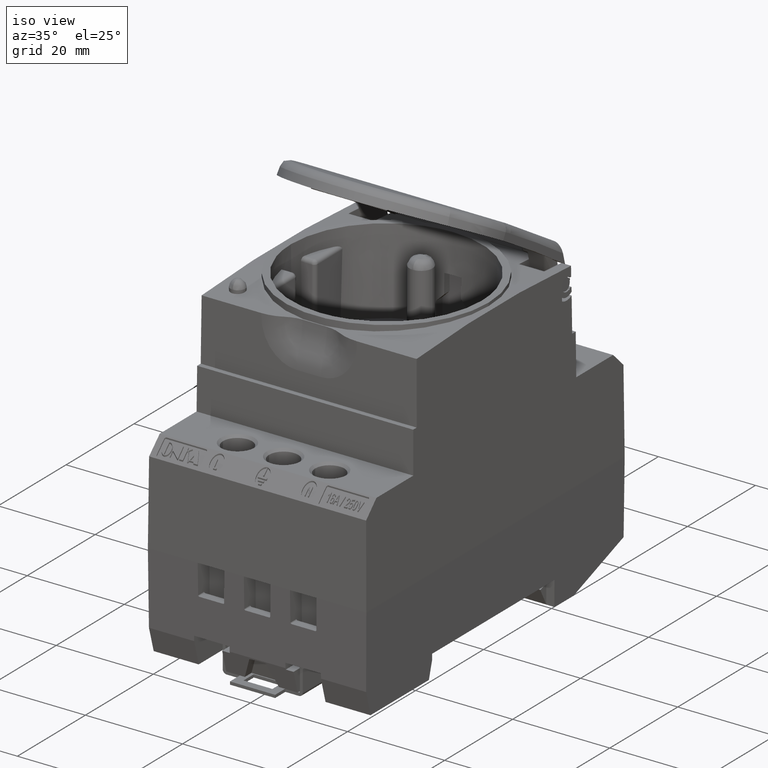
[diagram: clean part render]
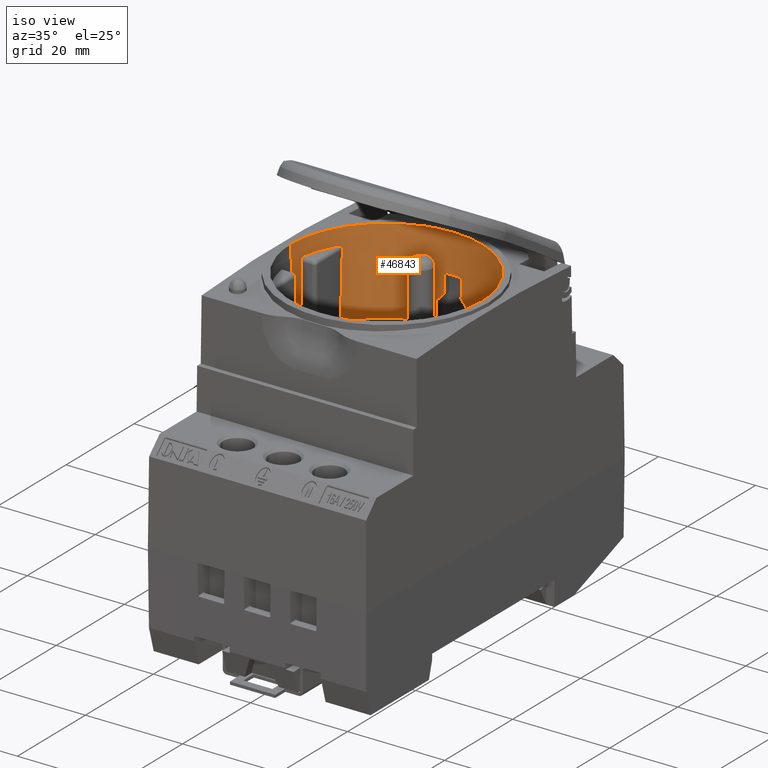
[diagram: same view with one face highlighted and labeled with its STEP entity id]
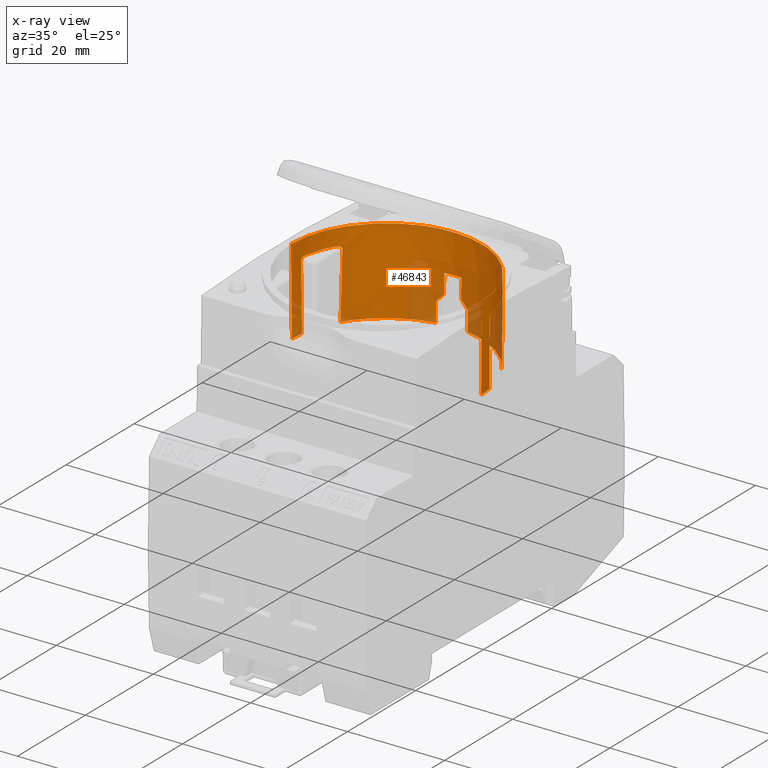
[diagram: x-ray of the same camera — body ghosted, the highlighted face saturated]
A machine part, iso view. The second image highlights one B-rep face of the part: STEP entity #46843.
The next image is the same camera in x-ray: the body ghosted, the highlighted face saturated — about 17% of this face is hidden behind the body in this view.
In plain terms, the highlighted conical surface has half-angle 0.5 deg.
Its self-contained STEP definition (entity closure, byte-faithful):
#18 = VERTEX_POINT ( 'NONE', #30670 ) ;
#33 = VERTEX_POINT ( 'NONE', #30674 ) ;
#44 = VERTEX_POINT ( 'NONE', #30706 ) ;
#1421 = VECTOR ( 'NONE', #39877, 1000.000000000000000 ) ;
#1708 = VECTOR ( 'NONE', #40313, 1000.000000000000000 ) ;
#1795 = VERTEX_POINT ( 'NONE', #30821 ) ;
#1807 = VERTEX_POINT ( 'NONE', #30770 ) ;
#3289 = B_SPLINE_CURVE_WITH_KNOTS ( 'NONE', 3,
 ( #49094, #49111, #49098, #49114, #49120, #49099, #49085, #49123, #49118, #49090, #49122, #49112, #49104, #49132, #49084, #49093, #49115, #49088, #49105, #49102, #49078, #49124, #49089, #49107, #49126 ),
 .UNSPECIFIED., .F., .F.,
 ( 4, 2, 2, 1, 1, 1, 2, 2, 2, 2, 1, 1, 2, 2, 4 ),
 ( 0.0000000000000000000, 0.2499999999999999400, 0.3750000000000011100, 0.4375000000000029400, 0.4687500000000038900, 0.4843750000000068300, 0.4921875000000041600, 0.5000000000000015500, 0.6249999999999597000, 0.6874999999999387200, 0.7187499999999302800, 0.7343749999999270600, 0.7421874999999268400, 0.7499999999999266100, 1.000000000000000000 ),
 .UNSPECIFIED. ) ;
#3302 = B_SPLINE_CURVE_WITH_KNOTS ( 'NONE', 3,
 ( #48960, #48932, #48974, #48982 ),
 .UNSPECIFIED., .F., .F.,
 ( 4, 4 ),
 ( 0.0000000000000000000, 1.000000000000000000 ),
 .UNSPECIFIED. ) ;
#3303 = B_SPLINE_CURVE_WITH_KNOTS ( 'NONE', 3,
 ( #48959, #48961, #49024, #49007, #49015, #48976 ),
 .UNSPECIFIED., .F., .F.,
 ( 4, 2, 4 ),
 ( 0.0000000000000000000, 0.5000000000000000000, 1.000000000000000000 ),
 .UNSPECIFIED. ) ;
#3304 = B_SPLINE_CURVE_WITH_KNOTS ( 'NONE', 3,
 ( #49009, #48988, #49011, #48990, #48981, #49017 ),
 .UNSPECIFIED., .F., .F.,
 ( 4, 2, 4 ),
 ( 0.0000000000000000000, 0.5000000000000000000, 1.000000000000000000 ),
 .UNSPECIFIED. ) ;
#3309 = B_SPLINE_CURVE_WITH_KNOTS ( 'NONE', 3,
 ( #49018, #49023, #48972, #49019 ),
 .UNSPECIFIED., .F., .F.,
 ( 4, 4 ),
 ( 0.0000000000000000000, 1.000000000000000000 ),
 .UNSPECIFIED. ) ;
#3310 = B_SPLINE_CURVE_WITH_KNOTS ( 'NONE', 3,
 ( #49056, #49034, #49027, #49036 ),
 .UNSPECIFIED., .F., .F.,
 ( 4, 4 ),
 ( 0.0000000000000000000, 1.000000000000000000 ),
 .UNSPECIFIED. ) ;
#3314 = B_SPLINE_CURVE_WITH_KNOTS ( 'NONE', 3,
 ( #48930, #48954, #48931, #48970 ),
 .UNSPECIFIED., .F., .F.,
 ( 4, 4 ),
 ( 0.0000000000000000000, 1.000000000000000000 ),
 .UNSPECIFIED. ) ;
#3315 = B_SPLINE_CURVE_WITH_KNOTS ( 'NONE', 3,
 ( #49130, #49116, #49079, #49131, #49109, #49081, #49083, #49143, #49149, #49135, #49178, #49170, #49167, #49134, #49176, #49141, #49155, #49175, #49144, #49150 ),
 .UNSPECIFIED., .F., .F.,
 ( 4, 1, 1, 1, 2, 2, 2, 1, 1, 1, 2, 2, 4 ),
 ( 0.0000000000000000000, 0.1250000000000003300, 0.1875000000000004400, 0.2187500000000006100, 0.2343750000000005800, 0.2500000000000005600, 0.5000000000000008900, 0.6250000000000012200, 0.6875000000000015500, 0.7187500000000018900, 0.7343750000000020000, 0.7500000000000020000, 1.000000000000000000 ),
 .UNSPECIFIED. ) ;
#3316 = B_SPLINE_CURVE_WITH_KNOTS ( 'NONE', 3,
 ( #49182, #49173, #49169, #49136 ),
 .UNSPECIFIED., .F., .F.,
 ( 4, 4 ),
 ( 0.0000000000000000000, 1.000000000000000000 ),
 .UNSPECIFIED. ) ;
#3321 = B_SPLINE_CURVE_WITH_KNOTS ( 'NONE', 3,
 ( #49207, #49226, #49290, #49272 ),
 .UNSPECIFIED., .F., .F.,
 ( 4, 4 ),
 ( 0.0000000000000000000, 0.9999998778534484600 ),
 .UNSPECIFIED. ) ;
#3328 = B_SPLINE_CURVE_WITH_KNOTS ( 'NONE', 3,
 ( #49181, #49162, #49158, #49139 ),
 .UNSPECIFIED., .F., .F.,
 ( 4, 4 ),
 ( 0.0000000000000000000, 1.000000000000000000 ),
 .UNSPECIFIED. ) ;
#3334 = B_SPLINE_CURVE_WITH_KNOTS ( 'NONE', 3,
 ( #20245, #20248, #20251, #20250 ),
 .UNSPECIFIED., .F., .F.,
 ( 4, 4 ),
 ( 0.0000000000000000000, 1.000000000000000000 ),
 .UNSPECIFIED. ) ;
#3339 = B_SPLINE_CURVE_WITH_KNOTS ( 'NONE', 3,
 ( #20312, #20327, #20347, #20315, #20319, #20340, #20331, #20333, #20317, #20348, #20345, #20308, #20329, #20353, #20330, #20334, #20335, #20350, #20316, #20336, #20344, #20302, #20303, #20341 ),
 .UNSPECIFIED., .F., .F.,
 ( 4, 2, 2, 1, 1, 2, 2, 2, 2, 1, 1, 2, 2, 4 ),
 ( 0.0000000000000000000, 0.1250000000000229800, 0.1875000000000344700, 0.2187500000000428800, 0.2343750000000473000, 0.2421875000000484900, 0.2500000000000497400, 0.3750000000000474600, 0.4375000000000442400, 0.4687500000000423000, 0.4843750000000420800, 0.4921875000000431900, 0.5000000000000443000, 1.000000000000000000 ),
 .UNSPECIFIED. ) ;
#3341 = B_SPLINE_CURVE_WITH_KNOTS ( 'NONE', 3,
 ( #48942, #48952, #48968, #48935 ),
 .UNSPECIFIED., .F., .F.,
 ( 4, 4 ),
 ( 0.0000000000000000000, 1.000000000000000000 ),
 .UNSPECIFIED. ) ;
#3343 = B_SPLINE_CURVE_WITH_KNOTS ( 'NONE', 3,
 ( #48947, #48963, #48966, #48971 ),
 .UNSPECIFIED., .F., .F.,
 ( 4, 4 ),
 ( 0.0000000000000000000, 0.9999998748836067500 ),
 .UNSPECIFIED. ) ;
#3344 = B_SPLINE_CURVE_WITH_KNOTS ( 'NONE', 3,
 ( #49059, #49063, #49064, #49073 ),
 .UNSPECIFIED., .F., .F.,
 ( 4, 4 ),
 ( 0.0000000000000000000, 1.000000000000000000 ),
 .UNSPECIFIED. ) ;
#3373 = B_SPLINE_CURVE_WITH_KNOTS ( 'NONE', 3,
 ( #38707, #38708, #38681, #38709, #38688, #38697, #38712, #38689, #38694, #38713, #38699, #38698, #38702, #38714, #38680, #38686, #38703, #38692, #38704, #38695 ),
 .UNSPECIFIED., .F., .F.,
 ( 4, 1, 1, 1, 2, 2, 2, 1, 1, 1, 2, 2, 4 ),
 ( 0.0000000000000000000, 0.1249999999999996700, 0.1874999999999995000, 0.2187499999999994200, 0.2343749999999993100, 0.2499999999999991700, 0.4999999999999988900, 0.6249999999999987800, 0.6874999999999985600, 0.7187499999999985600, 0.7343749999999985600, 0.7499999999999986700, 1.000000000000000000 ),
 .UNSPECIFIED. ) ;
#3387 = B_SPLINE_CURVE_WITH_KNOTS ( 'NONE', 3,
 ( #49359, #49373, #49421, #49437 ),
 .UNSPECIFIED., .F., .F.,
 ( 4, 4 ),
 ( 0.0000000000000000000, 1.000000000000000000 ),
 .UNSPECIFIED. ) ;
#3401 = B_SPLINE_CURVE_WITH_KNOTS ( 'NONE', 3,
 ( #38548, #38559, #38551, #38563 ),
 .UNSPECIFIED., .F., .F.,
 ( 4, 4 ),
 ( 0.0000000000000000000, 1.000000000000000000 ),
 .UNSPECIFIED. ) ;
#3406 = B_SPLINE_CURVE_WITH_KNOTS ( 'NONE', 3,
 ( #38512, #38513, #38561, #38568 ),
 .UNSPECIFIED., .F., .F.,
 ( 4, 4 ),
 ( 0.0000000000000000000, 1.000000000000000000 ),
 .UNSPECIFIED. ) ;
#3431 = B_SPLINE_CURVE_WITH_KNOTS ( 'NONE', 3,
 ( #11976, #11979, #11947, #11949, #12028, #12020, #12007, #12015, #12038, #11986, #12017, #12002, #12006, #12037, #12014 ),
 .UNSPECIFIED., .F., .F.,
 ( 4, 2, 2, 1, 2, 2, 2, 4 ),
 ( 0.0000000000000000000, 0.2500000000000030000, 0.3750000000000047200, 0.4375000000000040500, 0.4687500000000033900, 0.5000000000000026600, 0.7500000000000014400, 1.000000000000000000 ),
 .UNSPECIFIED. ) ;
#7074 = VERTEX_POINT ( 'NONE', #30887 ) ;
#7240 = VERTEX_POINT ( 'NONE', #30896 ) ;
#7244 = VERTEX_POINT ( 'NONE', #30911 ) ;
#9785 = B_SPLINE_CURVE_WITH_KNOTS ( 'NONE', 3,
 ( #42407, #42403, #42386, #42412 ),
 .UNSPECIFIED., .F., .F.,
 ( 4, 4 ),
 ( 0.0000000000000000000, 1.000000000000000000 ),
 .UNSPECIFIED. ) ;
#9799 = B_SPLINE_CURVE_WITH_KNOTS ( 'NONE', 3,
 ( #51926, #51928, #51932, #51837 ),
 .UNSPECIFIED., .F., .F.,
 ( 4, 4 ),
 ( 0.0000000000000000000, 1.000000000000000000 ),
 .UNSPECIFIED. ) ;
#10292 = CARTESIAN_POINT ( 'NONE',  ( -19.43969692420386900, 2.634318759325989100, 13.44999999956835700 ) ) ;
#10319 = CARTESIAN_POINT ( 'NONE',  ( -19.43963556649847000, 2.634347226979995700, 13.44346059455383200 ) ) ;
#11947 = CARTESIAN_POINT ( 'NONE',  ( 19.43892230399691800, 2.652355097329371700, 13.64123203063979900 ) ) ;
#11949 = CARTESIAN_POINT ( 'NONE',  ( 19.43235868100984100, 2.708513976486047100, 13.77901930576895500 ) ) ;
#11976 = CARTESIAN_POINT ( 'NONE',  ( 19.43963552136337100, 2.634347274126437100, 13.44345509837631200 ) ) ;
#11979 = CARTESIAN_POINT ( 'NONE',  ( 19.44061885422058500, 2.633486633804449800, 13.54214129507479200 ) ) ;
#11986 = CARTESIAN_POINT ( 'NONE',  ( 19.41441945905634700, 2.846182084764579100, 13.97252987232776700 ) ) ;
#12002 = CARTESIAN_POINT ( 'NONE',  ( 19.39400317291750400, 2.988919535450857100, 14.09485095438026100 ) ) ;
#12006 = CARTESIAN_POINT ( 'NONE',  ( 19.36617435612596700, 3.168334227025846800, 14.17492854861370000 ) ) ;
#12007 = CARTESIAN_POINT ( 'NONE',  ( 19.42131384501766800, 2.795227292908724100, 13.91537065373776500 ) ) ;
#12014 = CARTESIAN_POINT ( 'NONE',  ( 19.32990224693615700, 3.384253987245255500, 14.20000000000004200 ) ) ;
#12015 = CARTESIAN_POINT ( 'NONE',  ( 19.41804089390971900, 2.819583395374507100, 13.94370387820188700 ) ) ;
#12017 = CARTESIAN_POINT ( 'NONE',  ( 19.40510181555946500, 2.913639079545772100, 14.04006769402139400 ) ) ;
#12020 = CARTESIAN_POINT ( 'NONE',  ( 19.42421028695188700, 2.773054491813391000, 13.88529908484278000 ) ) ;
#12028 = CARTESIAN_POINT ( 'NONE',  ( 19.42950103558242600, 2.731828065384831000, 13.82314375380858700 ) ) ;
#12037 = CARTESIAN_POINT ( 'NONE',  ( 19.34944408679273700, 3.272629498542982700, 14.20000000000000100 ) ) ;
#12038 = CARTESIAN_POINT ( 'NONE',  ( 19.41577526947031600, 2.836286229292585700, 13.96218252067963500 ) ) ;
#15235 = B_SPLINE_CURVE_WITH_KNOTS ( 'NONE', 3,
 ( #40420, #40405, #40404, #40417, #40392, #40418, #40375, #40395, #40370, #40398, #40396, #40406, #40402, #40414 ),
 .UNSPECIFIED., .F., .F.,
 ( 4, 2, 2, 2, 2, 2, 4 ),
 ( 0.0000000000000000000, 0.2500000000000160400, 0.3750000000000236500, 0.4375000000000288700, 0.4687500000000288700, 0.5000000000000288700, 1.000000000000000000 ),
 .UNSPECIFIED. ) ;
#15903 = EDGE_CURVE ( 'NONE', #45252, #1795, #39847, .T. ) ;
#16031 = EDGE_CURVE ( 'NONE', #44, #1807, #40369, .T. ) ;
#16036 = EDGE_CURVE ( 'NONE', #7074, #40717, #15235, .T. ) ;
#16838 = CARTESIAN_POINT ( 'NONE',  ( 19.50000000000000400, 1.375283362977446500E-013, -8.605833040282739100E-016 ) ) ;
#17493 = EDGE_CURVE ( 'NONE', #40752, #36630, #3334, .T. ) ;
#17506 = EDGE_CURVE ( 'NONE', #33, #36580, #3339, .T. ) ;
#17563 = EDGE_CURVE ( 'NONE', #45252, #36602, #3314, .T. ) ;
#17565 = EDGE_CURVE ( 'NONE', #36747, #36688, #3341, .T. ) ;
#17566 = EDGE_CURVE ( 'NONE', #36548, #36747, #3343, .T. ) ;
#17571 = EDGE_CURVE ( 'NONE', #36602, #7240, #3302, .T. ) ;
#17572 = EDGE_CURVE ( 'NONE', #36580, #7074, #3303, .T. ) ;
#17578 = EDGE_CURVE ( 'NONE', #7244, #36558, #3304, .T. ) ;
#17581 = EDGE_CURVE ( 'NONE', #36777, #36664, #3309, .T. ) ;
#17586 = EDGE_CURVE ( 'NONE', #36616, #18, #3310, .T. ) ;
#17589 = EDGE_CURVE ( 'NONE', #36546, #36568, #3344, .T. ) ;
#17597 = EDGE_CURVE ( 'NONE', #36558, #36777, #3289, .T. ) ;
#17601 = EDGE_CURVE ( 'NONE', #36664, #36644, #3315, .T. ) ;
#17610 = EDGE_CURVE ( 'NONE', #36568, #36672, #3328, .T. ) ;
#17611 = EDGE_CURVE ( 'NONE', #36688, #36640, #3316, .T. ) ;
#17617 = EDGE_CURVE ( 'NONE', #36644, #36546, #3321, .T. ) ;
#17638 = EDGE_CURVE ( 'NONE', #36672, #36646, #3387, .T. ) ;
#17663 = EDGE_CURVE ( 'NONE', #36646, #36548, #3406, .T. ) ;
#17665 = EDGE_CURVE ( 'NONE', #36630, #44, #3401, .T. ) ;
#17682 = EDGE_CURVE ( 'NONE', #36640, #36616, #3373, .T. ) ;
#17951 = EDGE_CURVE ( 'NONE', #7240, #7244, #3431, .T. ) ;
#20245 = CARTESIAN_POINT ( 'NONE',  ( -19.43963556649847000, 2.634347226979995700, 13.44346059455383200 ) ) ;
#20248 = CARTESIAN_POINT ( 'NONE',  ( -19.39472030585498900, 2.673427124117671000, 8.962306513190270600 ) ) ;
#20250 = CARTESIAN_POINT ( 'NONE',  ( -19.30488978215225500, 2.751586905578907900, -7.489658856064904700E-014 ) ) ;
#20251 = CARTESIAN_POINT ( 'NONE',  ( -19.34980504400362400, 2.712507014848288800, 4.481153256595042000 ) ) ;
#20302 = CARTESIAN_POINT ( 'NONE',  ( -16.92201657961049900, 9.937999001618081300, 14.13554798527124300 ) ) ;
#20303 = CARTESIAN_POINT ( 'NONE',  ( -17.07212852740090600, 9.684229159691749800, 14.19999999999999900 ) ) ;
#20308 = CARTESIAN_POINT ( 'NONE',  ( -16.63703241691017000, 10.40195551822185900, 13.88101019331201200 ) ) ;
#20312 = CARTESIAN_POINT ( 'NONE',  ( -16.50274680594889200, 10.60663762072977100, 13.45000007643707500 ) ) ;
#20315 = CARTESIAN_POINT ( 'NONE',  ( -16.53928798409334900, 10.55317978948697700, 13.68375448568223600 ) ) ;
#20316 = CARTESIAN_POINT ( 'NONE',  ( -16.80585738801568100, 10.12969873014763800, 14.05232956789671700 ) ) ;
#20317 = CARTESIAN_POINT ( 'NONE',  ( -16.60293291641647400, 10.45524537951258100, 13.82451457173686300 ) ) ;
#20319 = CARTESIAN_POINT ( 'NONE',  ( -16.55070249995607800, 10.53584537723974200, 13.71610836350478900 ) ) ;
#20327 = CARTESIAN_POINT ( 'NONE',  ( -16.50274632810258500, 10.60769660254266400, 13.51734407373272100 ) ) ;
#20329 = CARTESIAN_POINT ( 'NONE',  ( -16.66686662734003100, 10.35475113442242500, 13.92095154958219400 ) ) ;
#20330 = CARTESIAN_POINT ( 'NONE',  ( -16.73638288718446900, 10.24310329152418200, 13.99454486704760600 ) ) ;
#20331 = CARTESIAN_POINT ( 'NONE',  ( -16.58219235030429000, 10.48746433563083400, 13.78671517724224300 ) ) ;
#20333 = CARTESIAN_POINT ( 'NONE',  ( -16.59650096160843400, 10.46526276437503200, 13.81327991494511500 ) ) ;
#20334 = CARTESIAN_POINT ( 'NONE',  ( -16.76524414623760300, 10.19620728680835400, 14.02009359013504100 ) ) ;
#20335 = CARTESIAN_POINT ( 'NONE',  ( -16.78006578966606500, 10.17204098964630200, 14.03255254875425400 ) ) ;
#20336 = CARTESIAN_POINT ( 'NONE',  ( -16.81111179908475300, 10.12104471875683800, 14.05619268876640100 ) ) ;
#20340 = CARTESIAN_POINT ( 'NONE',  ( -16.57114327416053700, 10.50448455083881800, 13.76338806023574800 ) ) ;
#20341 = CARTESIAN_POINT ( 'NONE',  ( -17.25274632810255700, 9.350991394736521300, 14.20000000000001400 ) ) ;
#20344 = CARTESIAN_POINT ( 'NONE',  ( -16.81476221071298500, 10.11502438799828800, 14.05883004910038100 ) ) ;
#20345 = CARTESIAN_POINT ( 'NONE',  ( -16.61015923932200200, 10.44396950156181900, 13.83677009250234700 ) ) ;
#20347 = CARTESIAN_POINT ( 'NONE',  ( -16.51187375324637300, 10.59446461016851300, 13.58514325983128200 ) ) ;
#20348 = CARTESIAN_POINT ( 'NONE',  ( -16.60728700203122400, 10.44845547277031600, 13.83196975382599300 ) ) ;
#20350 = CARTESIAN_POINT ( 'NONE',  ( -16.79802198194327500, 10.14258996038332100, 14.04648967605667100 ) ) ;
#20353 = CARTESIAN_POINT ( 'NONE',  ( -16.71818590262005300, 10.27245184185702700, 13.97667138517562600 ) ) ;
#26052 = ORIENTED_EDGE ( 'NONE', *, *, #17951, .F. ) ;
#26057 = ORIENTED_EDGE ( 'NONE', *, *, #16036, .F. ) ;
#26068 = ORIENTED_EDGE ( 'NONE', *, *, #17682, .F. ) ;
#26072 = ORIENTED_EDGE ( 'NONE', *, *, #17566, .F. ) ;
#26074 = ORIENTED_EDGE ( 'NONE', *, *, #17610, .F. ) ;
#26083 = ORIENTED_EDGE ( 'NONE', *, *, #17506, .F. ) ;
#26084 = ORIENTED_EDGE ( 'NONE', *, *, #49635, .F. ) ;
#26087 = ORIENTED_EDGE ( 'NONE', *, *, #17565, .F. ) ;
#26088 = ORIENTED_EDGE ( 'NONE', *, *, #17663, .F. ) ;
#26090 = ORIENTED_EDGE ( 'NONE', *, *, #17589, .F. ) ;
#26091 = ORIENTED_EDGE ( 'NONE', *, *, #17617, .F. ) ;
#26102 = ORIENTED_EDGE ( 'NONE', *, *, #17638, .F. ) ;
#26103 = ORIENTED_EDGE ( 'NONE', *, *, #17601, .F. ) ;
#26104 = ORIENTED_EDGE ( 'NONE', *, *, #17581, .F. ) ;
#26106 = ORIENTED_EDGE ( 'NONE', *, *, #17597, .F. ) ;
#26107 = ORIENTED_EDGE ( 'NONE', *, *, #17578, .F. ) ;
#26120 = ORIENTED_EDGE ( 'NONE', *, *, #17572, .F. ) ;
#26122 = ORIENTED_EDGE ( 'NONE', *, *, #17586, .F. ) ;
#26123 = ORIENTED_EDGE ( 'NONE', *, *, #49702, .F. ) ;
#26125 = ORIENTED_EDGE ( 'NONE', *, *, #53343, .F. ) ;
#26133 = ORIENTED_EDGE ( 'NONE', *, *, #16031, .F. ) ;
#26136 = ORIENTED_EDGE ( 'NONE', *, *, #17611, .F. ) ;
#26156 = ORIENTED_EDGE ( 'NONE', *, *, #17665, .F. ) ;
#26173 = ORIENTED_EDGE ( 'NONE', *, *, #17493, .F. ) ;
#26182 = ORIENTED_EDGE ( 'NONE', *, *, #15903, .T. ) ;
#26188 = ORIENTED_EDGE ( 'NONE', *, *, #53350, .F. ) ;
#26190 = ORIENTED_EDGE ( 'NONE', *, *, #17563, .F. ) ;
#26214 = ORIENTED_EDGE ( 'NONE', *, *, #17571, .F. ) ;
#28758 = CONICAL_SURFACE ( 'NONE', #28796, 19.65359287311735400, 0.008726646259971604400 ) ;
#28796 = AXIS2_PLACEMENT_3D ( 'NONE', #52758, #52729, #52741 ) ;
#30670 = CARTESIAN_POINT ( 'NONE',  ( -16.50277489168970000, 10.60649024925131400, 13.44345442400226500 ) ) ;
#30674 = CARTESIAN_POINT ( 'NONE',  ( -16.50274680594889200, 10.60663762072977100, 13.45000007643707500 ) ) ;
#30706 = CARTESIAN_POINT ( 'NONE',  ( -19.50000000000000400, -3.255446055180149100E-013, 8.605833040282739100E-016 ) ) ;
#30770 = CARTESIAN_POINT ( 'NONE',  ( -19.65359287311735400, -3.254746120809366500E-013, 17.59999999999992000 ) ) ;
#30821 = CARTESIAN_POINT ( 'NONE',  ( 19.65359287311735400, 1.341864605293209900E-013, 17.59999999999990900 ) ) ;
#30887 = CARTESIAN_POINT ( 'NONE',  ( -19.32990224693615400, 3.384253987245262600, 14.20000000000000800 ) ) ;
#30896 = CARTESIAN_POINT ( 'NONE',  ( 19.43963552136337100, 2.634347274126437100, 13.44345509837631200 ) ) ;
#30911 = CARTESIAN_POINT ( 'NONE',  ( 19.32990224693615700, 3.384253987245255500, 14.20000000000004200 ) ) ;
#32337 = CARTESIAN_POINT ( 'NONE',  ( -1.750000000050483000, 19.50543150161833200, 9.600000064227810300 ) ) ;
#32367 = CARTESIAN_POINT ( 'NONE',  ( 3.250000000000389500, 19.22725929507369000, -4.776381406927651900E-014 ) ) ;
#32370 = CARTESIAN_POINT ( 'NONE',  ( -9.385023007061169200E-014, 19.58379265183727500, 9.600000085635228300 ) ) ;
#32389 = CARTESIAN_POINT ( 'NONE',  ( -17.25274632810255700, 9.350991394736521300, 14.20000000000001400 ) ) ;
#32395 = CARTESIAN_POINT ( 'NONE',  ( 17.25274632810255000, 9.350991394736532000, 14.20000000000004900 ) ) ;
#32414 = CARTESIAN_POINT ( 'NONE',  ( -16.62009414109898500, 10.19914068640133700, -4.657845572495293800E-014 ) ) ;
#32429 = CARTESIAN_POINT ( 'NONE',  ( -19.30488978215225500, 2.751586905578907900, -7.489658856064904700E-014 ) ) ;
#32440 = CARTESIAN_POINT ( 'NONE',  ( 19.30488983240809400, 2.751586835224971500, 4.200035497484167400E-006 ) ) ;
#32443 = CARTESIAN_POINT ( 'NONE',  ( -3.250000000000390400, 19.22725929507368300, -4.762038351860512700E-014 ) ) ;
#32467 = CARTESIAN_POINT ( 'NONE',  ( 3.250000077840944400, 19.26354604317835900, 4.099999702671508900 ) ) ;
#32473 = CARTESIAN_POINT ( 'NONE',  ( 1.750000000000746100, 19.47038356703131300, 5.599999999999965900 ) ) ;
#32504 = CARTESIAN_POINT ( 'NONE',  ( 16.62009414109898500, 10.19914068640133700, -4.775324393159733600E-014 ) ) ;
#32510 = CARTESIAN_POINT ( 'NONE',  ( -1.749999921916867600, 19.47038357157845900, 5.600000297140229400 ) ) ;
#32519 = CARTESIAN_POINT ( 'NONE',  ( 1.750000000000402600, 19.50543150106006600, 9.599999999999964100 ) ) ;
#32535 = CARTESIAN_POINT ( 'NONE',  ( -3.250000000000385500, 19.26354604893508000, 4.100000000000638200 ) ) ;
#32624 = CARTESIAN_POINT ( 'NONE',  ( 16.50277488580446300, 10.60649026929319800, 13.44345509837631700 ) ) ;
#33110 = CARTESIAN_POINT ( 'NONE',  ( -2.301977292761959200E-013, 19.65359287311735400, 17.59999999999990500 ) ) ;
#36546 = VERTEX_POINT ( 'NONE', #32467 ) ;
#36548 = VERTEX_POINT ( 'NONE', #32337 ) ;
#36558 = VERTEX_POINT ( 'NONE', #32395 ) ;
#36568 = VERTEX_POINT ( 'NONE', #32473 ) ;
#36580 = VERTEX_POINT ( 'NONE', #32389 ) ;
#36602 = VERTEX_POINT ( 'NONE', #32440 ) ;
#36616 = VERTEX_POINT ( 'NONE', #32414 ) ;
#36630 = VERTEX_POINT ( 'NONE', #32429 ) ;
#36640 = VERTEX_POINT ( 'NONE', #32443 ) ;
#36644 = VERTEX_POINT ( 'NONE', #32367 ) ;
#36646 = VERTEX_POINT ( 'NONE', #32370 ) ;
#36664 = VERTEX_POINT ( 'NONE', #32504 ) ;
#36672 = VERTEX_POINT ( 'NONE', #32519 ) ;
#36688 = VERTEX_POINT ( 'NONE', #32535 ) ;
#36747 = VERTEX_POINT ( 'NONE', #32510 ) ;
#36777 = VERTEX_POINT ( 'NONE', #32624 ) ;
#37832 = VERTEX_POINT ( 'NONE', #33110 ) ;
#38423 = B_SPLINE_CURVE_WITH_KNOTS ( 'NONE', 3,
 ( #58703, #58631, #58800, #58781, #58760, #58727, #58746, #58803, #58752, #58776, #58756, #58748, #58758, #58750, #58764, #58829, #58812, #58778, #58824, #58779, #58721, #58719, #58790, #58783, #58786, #58792, #58796, #58819, #58731, #58805, #58814, #58821, #58823, #58826, #58831, #58714, #58723, #58729, #58733, #58735, #58737, #58739, #58741, #58743, #58745, #58889, #58851, #58856, #58907, #58874, #58847, #58911, #58839, #58871 ),
 .UNSPECIFIED., .F., .F.,
 ( 4, 1, 1, 1, 1, 1, 2, 2, 1, 1, 1, 1, 2, 2, 1, 1, 1, 2, 2, 2, 1, 1, 1, 2, 2, 1, 1, 1, 1, 2, 2, 1, 1, 1, 1, 1, 2, 2, 4 ),
 ( 0.0000000000000000000, 0.06250000000000105500, 0.09375000000000159600, 0.1093750000000018900, 0.1171875000000020700, 0.1210937500000021400, 0.1230468750000021800, 0.1250000000000022200, 0.1875000000000032800, 0.2187500000000037500, 0.2343750000000039100, 0.2421875000000039100, 0.2460937500000040000, 0.2500000000000040500, 0.3125000000000040500, 0.3437500000000041100, 0.3593750000000041600, 0.3671875000000042200, 0.3750000000000042200, 0.5000000000000027800, 0.5625000000000021100, 0.5937500000000017800, 0.6093750000000015500, 0.6171875000000014400, 0.6250000000000013300, 0.6875000000000006700, 0.7187500000000004400, 0.7343750000000004400, 0.7421875000000004400, 0.7460937500000004400, 0.7500000000000005600, 0.8124999999999997800, 0.8437499999999995600, 0.8593749999999995600, 0.8671874999999995600, 0.8710937499999994400, 0.8730468749999995600, 0.8749999999999995600, 1.000000000000000000 ),
 .UNSPECIFIED. ) ;
#38445 = B_SPLINE_CURVE_WITH_KNOTS ( 'NONE', 3,
 ( #58525, #58571, #58526, #58553, #58579, #58575, #58562, #58530, #58532, #58484, #58558, #58569, #58577, #58518, #58536, #58534, #58491, #58539, #58528, #58597, #58555, #58485, #58501, #58541, #58522, #58543, #58545, #58581, #58520, #58497, #58524, #58583, #58547, #58513, #58489, #58549, #58493, #58560, #58585, #58587, #58591, #58508, #58551, #58557, #58564, #58593, #58482, #58487, #58495, #58499, #58504, #58506, #58515 ),
 .UNSPECIFIED., .F., .F.,
 ( 4, 1, 1, 1, 1, 2, 2, 1, 1, 1, 1, 2, 2, 1, 1, 1, 2, 2, 2, 1, 1, 1, 2, 2, 1, 1, 1, 1, 2, 2, 1, 1, 1, 1, 1, 2, 2, 4 ),
 ( 0.0000000000000000000, 0.06249999999999895900, 0.09374999999999843200, 0.1093749999999981500, 0.1171874999999980200, 0.1210937499999979900, 0.1249999999999979500, 0.1874999999999969700, 0.2187499999999965600, 0.2343749999999963100, 0.2421874999999961400, 0.2460937499999960300, 0.2499999999999959500, 0.3124999999999946700, 0.3437499999999940600, 0.3593749999999937300, 0.3671874999999935600, 0.3749999999999933900, 0.4999999999999915600, 0.5624999999999907900, 0.5937499999999903400, 0.6093749999999903400, 0.6171874999999903400, 0.6249999999999904500, 0.6874999999999916700, 0.7187499999999921200, 0.7343749999999925600, 0.7421874999999928900, 0.7460937499999930100, 0.7499999999999931200, 0.8124999999999953400, 0.8437499999999964500, 0.8593749999999970000, 0.8671874999999973400, 0.8710937499999974500, 0.8730468749999975600, 0.8749999999999976700, 1.000000000000000000 ),
 .UNSPECIFIED. ) ;
#38512 = CARTESIAN_POINT ( 'NONE',  ( -9.385023007061169200E-014, 19.58379265183727500, 9.600000085635228300 ) ) ;
#38513 = CARTESIAN_POINT ( 'NONE',  ( -0.5832241476816080200, 19.58380405286565900, 9.599999999999999600 ) ) ;
#38548 = CARTESIAN_POINT ( 'NONE',  ( -19.30488978215225500, 2.751586905578907900, -7.489658856064904700E-014 ) ) ;
#38551 = CARTESIAN_POINT ( 'NONE',  ( -19.49984477556161600, 0.9217962700008481800, 0.0000000000000000000 ) ) ;
#38559 = CARTESIAN_POINT ( 'NONE',  ( -19.43480803627903300, 1.838991905193927200, 0.0000000000000000000 ) ) ;
#38561 = CARTESIAN_POINT ( 'NONE',  ( -1.166557481015075600, 19.55767876249665700, 9.599999999999999600 ) ) ;
#38563 = CARTESIAN_POINT ( 'NONE',  ( -19.50000000000000400, -3.255446055180149100E-013, 8.605833040282739100E-016 ) ) ;
#38568 = CARTESIAN_POINT ( 'NONE',  ( -1.750000000050483000, 19.50543150161833200, 9.600000064227810300 ) ) ;
#38680 = CARTESIAN_POINT ( 'NONE',  ( -13.87350951269767000, 13.70342041907183600, -0.0000000000000000000 ) ) ;
#38681 = CARTESIAN_POINT ( 'NONE',  ( -4.930725506611422800, 18.88825821276010700, -0.0000000000000000000 ) ) ;
#38686 = CARTESIAN_POINT ( 'NONE',  ( -13.99647957902588400, 13.57777749520268900, -0.0000000000000000000 ) ) ;
#38688 = CARTESIAN_POINT ( 'NONE',  ( -6.639843369996208700, 18.33616176291623000, -0.0000000000000000000 ) ) ;
#38689 = CARTESIAN_POINT ( 'NONE',  ( -7.119233338454346700, 18.15417234263277300, 0.0000000000000000000 ) ) ;
#38692 = CARTESIAN_POINT ( 'NONE',  ( -15.06589828153964200, 12.45632226988457200, -0.0000000000000000000 ) ) ;
#38694 = CARTESIAN_POINT ( 'NONE',  ( -8.507946710518124800, 17.60247379445260000, -0.0000000000000000000 ) ) ;
#38695 = CARTESIAN_POINT ( 'NONE',  ( -16.62009414109898500, 10.19914068640133700, -4.657845572495293800E-014 ) ) ;
#38697 = CARTESIAN_POINT ( 'NONE',  ( -6.880767953221437400, 18.24588704421842100, -0.0000000000000000000 ) ) ;
#38698 = CARTESIAN_POINT ( 'NONE',  ( -12.33309060199540300, 15.13339552630459300, -0.0000000000000000000 ) ) ;
#38699 = CARTESIAN_POINT ( 'NONE',  ( -11.49526188649606300, 15.76723345251348700, -0.0000000000000000000 ) ) ;
#38702 = CARTESIAN_POINT ( 'NONE',  ( -13.24691578013457500, 14.31754182581463500, -0.0000000000000000000 ) ) ;
#38703 = CARTESIAN_POINT ( 'NONE',  ( -14.05908911880414000, 13.51292373968467900, 0.0000000000000000000 ) ) ;
#38704 = CARTESIAN_POINT ( 'NONE',  ( -15.89982526617252400, 11.37244559466855500, -0.0000000000000000000 ) ) ;
#38707 = CARTESIAN_POINT ( 'NONE',  ( -3.250000000000390400, 19.22725929507368300, -4.762038351860512700E-014 ) ) ;
#38708 = CARTESIAN_POINT ( 'NONE',  ( -3.928205835182398500, 19.11251152005279900, 0.0000000000000000000 ) ) ;
#38709 = CARTESIAN_POINT ( 'NONE',  ( -6.074450897593246500, 18.53539897591958800, -0.0000000000000000000 ) ) ;
#38712 = CARTESIAN_POINT ( 'NONE',  ( -7.041076236176939700, 18.18461782248733600, -0.0000000000000000000 ) ) ;
#38713 = CARTESIAN_POINT ( 'NONE',  ( -9.746871133657327500, 16.94762231074506800, -0.0000000000000000000 ) ) ;
#38714 = CARTESIAN_POINT ( 'NONE',  ( -13.68791795505163800, 13.89052094559141000, -0.0000000000000000000 ) ) ;
#39847 = LINE ( 'NONE', #39858, #1421 ) ;
#39858 = CARTESIAN_POINT ( 'NONE',  ( 19.65359287311735400, 0.0000000000000000000, 17.59999999999978100 ) ) ;
#39877 = DIRECTION ( 'NONE',  ( 0.008726535498373979800, 0.0000000000000000000, 0.9999619230641713100 ) ) ;
#40313 = DIRECTION ( 'NONE',  ( -0.008726535498373802800, 1.068692376572934000E-018, 0.9999619230641713100 ) ) ;
#40322 = CARTESIAN_POINT ( 'NONE',  ( -19.65359287311735400, 2.406870960380840200E-015, 17.59999999999978800 ) ) ;
#40369 = LINE ( 'NONE', #40322, #1708 ) ;
#40370 = CARTESIAN_POINT ( 'NONE',  ( -19.40874205127990500, 2.886793857360916400, 14.01134066537301100 ) ) ;
#40375 = CARTESIAN_POINT ( 'NONE',  ( -19.40393659768567900, 2.920279184354528800, 14.03963514769486500 ) ) ;
#40392 = CARTESIAN_POINT ( 'NONE',  ( -19.39302203873240400, 2.994263100543284500, 14.09222797132365000 ) ) ;
#40395 = CARTESIAN_POINT ( 'NONE',  ( -19.40757327924379200, 2.894989741947344700, 14.01850360250083400 ) ) ;
#40396 = CARTESIAN_POINT ( 'NONE',  ( -19.41189772540037200, 2.864414596733697600, 13.99071233501668700 ) ) ;
#40398 = CARTESIAN_POINT ( 'NONE',  ( -19.41099268633690400, 2.870867773824605800, 13.99681045581195700 ) ) ;
#40402 = CARTESIAN_POINT ( 'NONE',  ( -19.44142221322278600, 2.634319772481811500, 13.64628162983064300 ) ) ;
#40404 = CARTESIAN_POINT ( 'NONE',  ( -19.36597875532433100, 3.169536935115794500, 14.17522337401855400 ) ) ;
#40405 = CARTESIAN_POINT ( 'NONE',  ( -19.34932877353079300, 3.273288092919949500, 14.19999999999999900 ) ) ;
#40406 = CARTESIAN_POINT ( 'NONE',  ( -19.43255669822459500, 2.715214943951440100, 13.84243311582672900 ) ) ;
#40414 = CARTESIAN_POINT ( 'NONE',  ( -19.43969692420386900, 2.634318759325989100, 13.44999999956835700 ) ) ;
#40417 = CARTESIAN_POINT ( 'NONE',  ( -19.38678256135230200, 3.035474595895906200, 14.11574762444093200 ) ) ;
#40418 = CARTESIAN_POINT ( 'NONE',  ( -19.40133832203291300, 2.938075682875385100, 14.05324703606120300 ) ) ;
#40420 = CARTESIAN_POINT ( 'NONE',  ( -19.32990224693615400, 3.384253987245262600, 14.20000000000000800 ) ) ;
#40717 = VERTEX_POINT ( 'NONE', #10292 ) ;
#40752 = VERTEX_POINT ( 'NONE', #10319 ) ;
#42386 = CARTESIAN_POINT ( 'NONE',  ( -19.43965599752280600, 2.634328234293962900, 13.44563979137760500 ) ) ;
#42403 = CARTESIAN_POINT ( 'NONE',  ( -19.43967643916590400, 2.634318740604915100, 13.44781989568869900 ) ) ;
#42407 = CARTESIAN_POINT ( 'NONE',  ( -19.43969692420386900, 2.634318759325989100, 13.44999999956835700 ) ) ;
#42412 = CARTESIAN_POINT ( 'NONE',  ( -19.43963556649847000, 2.634347226979995700, 13.44346059455383200 ) ) ;
#44758 = EDGE_LOOP ( 'NONE', ( #26133, #26156, #26173, #26123, #26057, #26120, #26083, #26084, #26122, #26068, #26136, #26087, #26072, #26088, #26102, #26074, #26090, #26091, #26103, #26104, #26106, #26107, #26052, #26214, #26190, #26182, #26125, #26188 ) ) ;
#45252 = VERTEX_POINT ( 'NONE', #16838 ) ;
#46843 = ADVANCED_FACE ( 'NONE', ( #52770 ), #28758, .F. ) ;
#48930 = CARTESIAN_POINT ( 'NONE',  ( 19.50000000000000400, 1.375283362977446500E-013, -8.605833040282739100E-016 ) ) ;
#48931 = CARTESIAN_POINT ( 'NONE',  ( 19.43480805014494100, 1.838991808079707900, 0.0000000000000000000 ) ) ;
#48932 = CARTESIAN_POINT ( 'NONE',  ( 19.34980507500238300, 2.712506989602583700, 4.481156151565276200 ) ) ;
#48935 = CARTESIAN_POINT ( 'NONE',  ( -3.250000000000385500, 19.26354604893508000, 4.100000000000638200 ) ) ;
#48942 = CARTESIAN_POINT ( 'NONE',  ( -1.749999921916867600, 19.47038357157845900, 5.600000297140229400 ) ) ;
#48947 = CARTESIAN_POINT ( 'NONE',  ( -1.750000000050483000, 19.50543150161833200, 9.600000064227810300 ) ) ;
#48952 = CARTESIAN_POINT ( 'NONE',  ( -2.252661656732977100, 19.42073939833858300, 5.097338343268092800 ) ) ;
#48954 = CARTESIAN_POINT ( 'NONE',  ( 19.49984477557881500, 0.9217961912548292600, 0.0000000000000000000 ) ) ;
#48959 = CARTESIAN_POINT ( 'NONE',  ( -17.25274632810255700, 9.350991394736521300, 14.20000000000001400 ) ) ;
#48960 = CARTESIAN_POINT ( 'NONE',  ( 19.30488983240809400, 2.751586835224971500, 4.200035497484167400E-006 ) ) ;
#48961 = CARTESIAN_POINT ( 'NONE',  ( -17.75789976551762100, 8.418603543701831200, 14.19999999999999900 ) ) ;
#48963 = CARTESIAN_POINT ( 'NONE',  ( -1.750001853794192400, 19.49374877612583700, 8.266666906465701500 ) ) ;
#48966 = CARTESIAN_POINT ( 'NONE',  ( -1.750001843434893400, 19.48206613433189800, 6.933333812931372200 ) ) ;
#48968 = CARTESIAN_POINT ( 'NONE',  ( -2.752661698438148900, 19.35179355824234200, 4.597338301562920100 ) ) ;
#48970 = CARTESIAN_POINT ( 'NONE',  ( 19.30488983240809400, 2.751586835224971500, 4.200035497484167400E-006 ) ) ;
#48971 = CARTESIAN_POINT ( 'NONE',  ( -1.749999921916867600, 19.47038357157845900, 5.600000297140229400 ) ) ;
#48972 = CARTESIAN_POINT ( 'NONE',  ( 16.58175288403129200, 10.33492431569914800, 4.393472891649318000 ) ) ;
#48974 = CARTESIAN_POINT ( 'NONE',  ( 19.39472029818287200, 2.673427131864511500, 8.962305624970810000 ) ) ;
#48976 = CARTESIAN_POINT ( 'NONE',  ( -19.32990224693615400, 3.384253987245262600, 14.20000000000000800 ) ) ;
#48981 = CARTESIAN_POINT ( 'NONE',  ( 17.75842320089557800, 8.417637793460066600, 14.20000000000000100 ) ) ;
#48982 = CARTESIAN_POINT ( 'NONE',  ( 19.43963552136337100, 2.634347274126437100, 13.44345509837631200 ) ) ;
#48988 = CARTESIAN_POINT ( 'NONE',  ( 19.14684996763894600, 4.428772518988391300, 14.19999999999999900 ) ) ;
#48990 = CARTESIAN_POINT ( 'NONE',  ( 18.18518291433994000, 7.451228770402250800, 14.19999999999999900 ) ) ;
#49007 = CARTESIAN_POINT ( 'NONE',  ( -18.88103493463319200, 5.452357986603207300, 14.19999999999999900 ) ) ;
#49009 = CARTESIAN_POINT ( 'NONE',  ( 19.32990224693615700, 3.384253987245255500, 14.20000000000004200 ) ) ;
#49011 = CARTESIAN_POINT ( 'NONE',  ( 18.88086802253138100, 5.452299880723913400, 14.20000000000000300 ) ) ;
#49015 = CARTESIAN_POINT ( 'NONE',  ( -19.14666052746669300, 4.429854540497267100, 14.20000000000000100 ) ) ;
#49017 = CARTESIAN_POINT ( 'NONE',  ( 17.25274632810255000, 9.350991394736532000, 14.20000000000004900 ) ) ;
#49018 = CARTESIAN_POINT ( 'NONE',  ( 16.50277488580446300, 10.60649026929319800, 13.44345509837631700 ) ) ;
#49019 = CARTESIAN_POINT ( 'NONE',  ( 16.62009414109898500, 10.19914068640133700, -4.775324393159733600E-014 ) ) ;
#49023 = CARTESIAN_POINT ( 'NONE',  ( 16.54264646559978000, 10.47070750999643500, 8.874624591108100100 ) ) ;
#49024 = CARTESIAN_POINT ( 'NONE',  ( -18.18501600223812900, 7.451170664522955200, 14.20000000000000300 ) ) ;
#49027 = CARTESIAN_POINT ( 'NONE',  ( -16.54264646657266300, 10.47070750668324600, 8.874624479626852700 ) ) ;
#49034 = CARTESIAN_POINT ( 'NONE',  ( -16.58175288403143800, 10.33492431569859700, 4.393472891632707300 ) ) ;
#49036 = CARTESIAN_POINT ( 'NONE',  ( -16.50277489168970000, 10.60649024925131400, 13.44345442400226500 ) ) ;
#49056 = CARTESIAN_POINT ( 'NONE',  ( -16.62009414109898500, 10.19914068640133700, -4.657845572495293800E-014 ) ) ;
#49059 = CARTESIAN_POINT ( 'NONE',  ( 3.250000077840944400, 19.26354604317835900, 4.099999702671508900 ) ) ;
#49063 = CARTESIAN_POINT ( 'NONE',  ( 2.752661698695205100, 19.35179355822001300, 4.597338301305863500 ) ) ;
#49064 = CARTESIAN_POINT ( 'NONE',  ( 2.252661656961872700, 19.42073939832415500, 5.097338343039195900 ) ) ;
#49073 = CARTESIAN_POINT ( 'NONE',  ( 1.750000000000746100, 19.47038356703131300, 5.599999999999965900 ) ) ;
#49078 = CARTESIAN_POINT ( 'NONE',  ( 16.61295777060360700, 10.43959252642377000, 13.84138223811754500 ) ) ;
#49079 = CARTESIAN_POINT ( 'NONE',  ( 15.67762032973710600, 11.63144759392003300, -0.0000000000000000000 ) ) ;
#49081 = CARTESIAN_POINT ( 'NONE',  ( 14.35311707731536800, 13.20020423407761000, -0.0000000000000000000 ) ) ;
#49083 = CARTESIAN_POINT ( 'NONE',  ( 14.23638433930760700, 13.32600618554227800, -0.0000000000000000000 ) ) ;
#49084 = CARTESIAN_POINT ( 'NONE',  ( 16.68206498620245500, 10.33035652184325700, 13.93730706898658600 ) ) ;
#49085 = CARTESIAN_POINT ( 'NONE',  ( 16.86338838478597400, 10.03409042003166700, 14.09141152841191600 ) ) ;
#49088 = CARTESIAN_POINT ( 'NONE',  ( 16.63289451167071700, 10.40830307566311100, 13.87255374761901900 ) ) ;
#49089 = CARTESIAN_POINT ( 'NONE',  ( 16.53818899345913400, 10.55647774765253600, 13.71691686374854400 ) ) ;
#49090 = CARTESIAN_POINT ( 'NONE',  ( 16.82149751217620100, 10.10389319736193600, 14.06361931443132800 ) ) ;
#49093 = CARTESIAN_POINT ( 'NONE',  ( 16.66602273357408800, 10.35589817312922300, 13.91784522455238000 ) ) ;
#49094 = CARTESIAN_POINT ( 'NONE',  ( 17.25274632810255000, 9.350991394736532000, 14.20000000000004900 ) ) ;
#49098 = CARTESIAN_POINT ( 'NONE',  ( 17.07816131900133900, 9.665549498397425100, 14.18354926956475400 ) ) ;
#49099 = CARTESIAN_POINT ( 'NONE',  ( 16.88613528776347600, 9.995707485270806100, 14.10453537283880700 ) ) ;
#49102 = CARTESIAN_POINT ( 'NONE',  ( 16.61618838759116200, 10.43453335030359100, 13.84661498079670500 ) ) ;
#49104 = CARTESIAN_POINT ( 'NONE',  ( 16.77218682697550300, 10.18528662132352000, 14.02820552828799400 ) ) ;
#49105 = CARTESIAN_POINT ( 'NONE',  ( 16.62108787105372800, 10.42685416089368100, 13.85444286126637400 ) ) ;
#49107 = CARTESIAN_POINT ( 'NONE',  ( 16.50159055647555600, 10.61045407831215700, 13.57916579748534700 ) ) ;
#49109 = CARTESIAN_POINT ( 'NONE',  ( 14.52687777022750900, 13.01046388192304300, -0.0000000000000000000 ) ) ;
#49111 = CARTESIAN_POINT ( 'NONE',  ( 17.16208505368518900, 9.518256730046035200, 14.20000000000000300 ) ) ;
#49112 = CARTESIAN_POINT ( 'NONE',  ( 16.81749506672303000, 10.11051422695696000, 14.06079220449613300 ) ) ;
#49114 = CARTESIAN_POINT ( 'NONE',  ( 16.96783684356853800, 9.856529800487333400, 14.14487063522142000 ) ) ;
#49115 = CARTESIAN_POINT ( 'NONE',  ( 16.64365493041775700, 10.39131704270987000, 13.88779401765507300 ) ) ;
#49116 = CARTESIAN_POINT ( 'NONE',  ( 16.26023631702781100, 10.78534248886572800, 0.0000000000000000000 ) ) ;
#49118 = CARTESIAN_POINT ( 'NONE',  ( 16.82655032802260200, 10.09552624464668800, 14.06716019482479200 ) ) ;
#49120 = CARTESIAN_POINT ( 'NONE',  ( 16.93358441379876200, 9.915196759444439700, 14.12964439910951600 ) ) ;
#49122 = CARTESIAN_POINT ( 'NONE',  ( 16.81814882074544900, 10.10943215691893500, 14.06125216636020900 ) ) ;
#49123 = CARTESIAN_POINT ( 'NONE',  ( 16.83854933241061100, 10.07559376131944100, 14.07534988231102300 ) ) ;
#49124 = CARTESIAN_POINT ( 'NONE',  ( 16.61201797016219600, 10.44106388761624900, 13.83985388919631300 ) ) ;
#49126 = CARTESIAN_POINT ( 'NONE',  ( 16.50277488580446300, 10.60649026929319800, 13.44345509837631700 ) ) ;
#49130 = CARTESIAN_POINT ( 'NONE',  ( 16.62009414109898500, 10.19914068640133700, -4.775324393159733600E-014 ) ) ;
#49131 = CARTESIAN_POINT ( 'NONE',  ( 14.92295048832601800, 12.56047441885937300, -0.0000000000000000000 ) ) ;
#49132 = CARTESIAN_POINT ( 'NONE',  ( 16.73348885535460400, 10.24794435328871400, 13.99355604210078700 ) ) ;
#49134 = CARTESIAN_POINT ( 'NONE',  ( 7.769642427180096800, 17.88681991405681500, -0.0000000000000000000 ) ) ;
#49135 = CARTESIAN_POINT ( 'NONE',  ( 12.07793073915925700, 15.37358084326701600, -0.0000000000000000000 ) ) ;
#49136 = CARTESIAN_POINT ( 'NONE',  ( -3.250000000000390400, 19.22725929507368300, -4.762038351860512700E-014 ) ) ;
#49139 = CARTESIAN_POINT ( 'NONE',  ( 1.750000000000402600, 19.50543150106006600, 9.599999999999964100 ) ) ;
#49141 = CARTESIAN_POINT ( 'NONE',  ( 7.364254219328166200, 18.05616908727968800, -0.0000000000000000000 ) ) ;
#49143 = CARTESIAN_POINT ( 'NONE',  ( 14.17893962553252700, 13.38712545204849400, 0.0000000000000000000 ) ) ;
#49144 = CARTESIAN_POINT ( 'NONE',  ( 4.607454408191391500, 18.99758737774166000, 0.0000000000000000000 ) ) ;
#49149 = CARTESIAN_POINT ( 'NONE',  ( 13.14829017388548000, 14.46909487206354200, -0.0000000000000000000 ) ) ;
#49150 = CARTESIAN_POINT ( 'NONE',  ( 3.250000000000389500, 19.22725929507369000, -4.776381406927651900E-014 ) ) ;
#49155 = CARTESIAN_POINT ( 'NONE',  ( 7.280703224842754100, 18.09000982301500200, 0.0000000000000000000 ) ) ;
#49158 = CARTESIAN_POINT ( 'NONE',  ( 1.750001864164038700, 19.49374877309437100, 8.266666666666628400 ) ) ;
#49162 = CARTESIAN_POINT ( 'NONE',  ( 1.750001864155270400, 19.48206612826899000, 6.933333333333228800 ) ) ;
#49167 = CARTESIAN_POINT ( 'NONE',  ( 8.330518655040492600, 17.63732520984686400, -0.0000000000000000000 ) ) ;
#49169 = CARTESIAN_POINT ( 'NONE',  ( -3.250003692549672700, 19.23935457200678900, 1.366666666666730900 ) ) ;
#49170 = CARTESIAN_POINT ( 'NONE',  ( 9.428739593823774400, 17.09455040719887700, -0.0000000000000000000 ) ) ;
#49173 = CARTESIAN_POINT ( 'NONE',  ( -3.250003692613112200, 19.25145015719615000, 2.733333333333653600 ) ) ;
#49175 = CARTESIAN_POINT ( 'NONE',  ( 5.924428528304767700, 18.62907410833623300, -0.0000000000000000000 ) ) ;
#49176 = CARTESIAN_POINT ( 'NONE',  ( 7.526745666996613500, 17.98905492362237300, -0.0000000000000000000 ) ) ;
#49178 = CARTESIAN_POINT ( 'NONE',  ( 10.32973208374514100, 16.55425418625250000, -0.0000000000000000000 ) ) ;
#49181 = CARTESIAN_POINT ( 'NONE',  ( 1.750000000000746100, 19.47038356703131300, 5.599999999999965900 ) ) ;
#49182 = CARTESIAN_POINT ( 'NONE',  ( -3.250000000000385500, 19.26354604893508000, 4.100000000000638200 ) ) ;
#49207 = CARTESIAN_POINT ( 'NONE',  ( 3.250000000000389500, 19.22725929507369000, -4.776381406927651900E-014 ) ) ;
#49226 = CARTESIAN_POINT ( 'NONE',  ( 3.250003702689644700, 19.23935456816908700, 1.366666426714036900 ) ) ;
#49272 = CARTESIAN_POINT ( 'NONE',  ( 3.250000077840944400, 19.26354604317835900, 4.099999702671508900 ) ) ;
#49290 = CARTESIAN_POINT ( 'NONE',  ( 3.250003712913493100, 19.25145014952062200, 2.733332853428265300 ) ) ;
#49359 = CARTESIAN_POINT ( 'NONE',  ( 1.750000000000402600, 19.50543150106006600, 9.599999999999964100 ) ) ;
#49373 = CARTESIAN_POINT ( 'NONE',  ( 1.166557481015131300, 19.55767876249664600, 9.599999999999999600 ) ) ;
#49421 = CARTESIAN_POINT ( 'NONE',  ( 0.5832241476816647500, 19.58380405286564900, 9.599999999999999600 ) ) ;
#49437 = CARTESIAN_POINT ( 'NONE',  ( -9.385023007061169200E-014, 19.58379265183727500, 9.600000085635228300 ) ) ;
#49635 = EDGE_CURVE ( 'NONE', #18, #33, #9799, .T. ) ;
#49702 = EDGE_CURVE ( 'NONE', #40717, #40752, #9785, .T. ) ;
#51837 = CARTESIAN_POINT ( 'NONE',  ( -16.50274680594889200, 10.60663762072977100, 13.45000007643707500 ) ) ;
#51926 = CARTESIAN_POINT ( 'NONE',  ( -16.50277489168970000, 10.60649024925131400, 13.44345442400226500 ) ) ;
#51928 = CARTESIAN_POINT ( 'NONE',  ( -16.50275584843015200, 10.60653929740461300, 13.44563645393251500 ) ) ;
#51932 = CARTESIAN_POINT ( 'NONE',  ( -16.50274632810258500, 10.60658833545394200, 13.44781822696615200 ) ) ;
#52729 = DIRECTION ( 'NONE',  ( 8.826495425931014500E-017, -0.0000000000000000000, 1.000000000000000000 ) ) ;
#52741 = DIRECTION ( 'NONE',  ( 1.000000000000000000, 0.0000000000000000000, -1.765299085186202900E-016 ) ) ;
#52758 = CARTESIAN_POINT ( 'NONE',  ( 3.062305765192887400E-031, 0.0000000000000000000, 17.59999999999978500 ) ) ;
#52770 = FACE_OUTER_BOUND ( 'NONE', #44758, .T. ) ;
#53343 = EDGE_CURVE ( 'NONE', #37832, #1795, #38445, .T. ) ;
#53350 = EDGE_CURVE ( 'NONE', #1807, #37832, #38423, .T. ) ;
#58482 = CARTESIAN_POINT ( 'NONE',  ( 19.29967443652919100, 3.713324420864831900, 17.60000000000000100 ) ) ;
#58484 = CARTESIAN_POINT ( 'NONE',  ( 4.202508895631978300, 19.20963538979014000, 17.59999999999999800 ) ) ;
#58485 = CARTESIAN_POINT ( 'NONE',  ( 10.47527844674863400, 16.62946878493671900, 17.60000000000000100 ) ) ;
#58487 = CARTESIAN_POINT ( 'NONE',  ( 19.31082208104214400, 3.654594463377833300, 17.60000000000000100 ) ) ;
#58489 = CARTESIAN_POINT ( 'NONE',  ( 17.31350467917395600, 9.342629687337664600, 17.59999999999999400 ) ) ;
#58491 = CARTESIAN_POINT ( 'NONE',  ( 7.195816585422591100, 18.28894568431808300, 17.60000000000000100 ) ) ;
#58493 = CARTESIAN_POINT ( 'NONE',  ( 18.05307217485291500, 7.771713443459091800, 17.59999999999999400 ) ) ;
#58495 = CARTESIAN_POINT ( 'NONE',  ( 19.31819606512237500, 3.615423986004542700, 17.59999999999999400 ) ) ;
#58497 = CARTESIAN_POINT ( 'NONE',  ( 16.11895270820543400, 11.24697938362971100, 17.60000000000000500 ) ) ;
#58499 = CARTESIAN_POINT ( 'NONE',  ( 19.32206856101873900, 3.594672161894492600, 17.60000000000000500 ) ) ;
#58501 = CARTESIAN_POINT ( 'NONE',  ( 10.61531388942807100, 16.54041865702040700, 17.60000000000000500 ) ) ;
#58504 = CARTESIAN_POINT ( 'NONE',  ( 19.54403184745173400, 2.395785392542887100, 17.60000000000000100 ) ) ;
#58506 = CARTESIAN_POINT ( 'NONE',  ( 19.65340167822084900, 1.203709475856817200, 17.60000000000000100 ) ) ;
#58508 = CARTESIAN_POINT ( 'NONE',  ( 18.50814679220728800, 6.642275444533249900, 17.59999999999999800 ) ) ;
#58513 = CARTESIAN_POINT ( 'NONE',  ( 16.81315284321071200, 10.19922270734560900, 17.60000000000000100 ) ) ;
#58515 = CARTESIAN_POINT ( 'NONE',  ( 19.65359287311735400, 1.341864605293209900E-013, 17.59999999999990900 ) ) ;
#58518 = CARTESIAN_POINT ( 'NONE',  ( 6.974446913895824300, 18.37475946520857700, 17.60000000000000100 ) ) ;
#58520 = CARTESIAN_POINT ( 'NONE',  ( 15.77614664724400300, 11.72959163678502900, 17.60000000000000100 ) ) ;
#58522 = CARTESIAN_POINT ( 'NONE',  ( 11.88944840653992200, 15.70818218375727500, 17.60000000000000500 ) ) ;
#58524 = CARTESIAN_POINT ( 'NONE',  ( 16.26208002735181400, 11.03701824687767500, 17.60000000000000500 ) ) ;
#58525 = CARTESIAN_POINT ( 'NONE',  ( -2.301977292761959200E-013, 19.65359287311735400, 17.59999999999990500 ) ) ;
#58526 = CARTESIAN_POINT ( 'NONE',  ( 1.498452669993134900, 19.61257991892186300, 17.60000000000000100 ) ) ;
#58528 = CARTESIAN_POINT ( 'NONE',  ( 8.754290630606711000, 17.61829796573626400, 17.60000000000000900 ) ) ;
#58530 = CARTESIAN_POINT ( 'NONE',  ( 3.502310661258861500, 19.33904785467371600, 17.59999999999999800 ) ) ;
#58532 = CARTESIAN_POINT ( 'NONE',  ( 3.537085178459423900, 19.33272388024883200, 17.60000000000000100 ) ) ;
#58534 = CARTESIAN_POINT ( 'NONE',  ( 7.160213145472126500, 18.30290872088641800, 17.60000000000000500 ) ) ;
#58536 = CARTESIAN_POINT ( 'NONE',  ( 7.085945532163099100, 18.33178836029786400, 17.60000000000000100 ) ) ;
#58539 = CARTESIAN_POINT ( 'NONE',  ( 7.851455161354643100, 18.02944141447509500, 17.60000000000000100 ) ) ;
#58541 = CARTESIAN_POINT ( 'NONE',  ( 10.68371204064868800, 16.49633069101575300, 17.60000000000000100 ) ) ;
#58543 = CARTESIAN_POINT ( 'NONE',  ( 12.93847000948168200, 14.85575111542400300, 17.60000000000000100 ) ) ;
#58545 = CARTESIAN_POINT ( 'NONE',  ( 14.37654818815047800, 13.41790763517950000, 17.60000000000000100 ) ) ;
#58547 = CARTESIAN_POINT ( 'NONE',  ( 16.40457103548153500, 10.82406458446633100, 17.59999999999999800 ) ) ;
#58549 = CARTESIAN_POINT ( 'NONE',  ( 17.81950664936534100, 8.302197758929537500, 17.60000000000000500 ) ) ;
#58551 = CARTESIAN_POINT ( 'NONE',  ( 18.81547167260410400, 5.740924881272465400, 17.59999999999999800 ) ) ;
#58553 = CARTESIAN_POINT ( 'NONE',  ( 2.539429653559442700, 19.49295648343244400, 17.59999999999999800 ) ) ;
#58555 = CARTESIAN_POINT ( 'NONE',  ( 10.26451365985247200, 16.76164446182528800, 17.60000000000000100 ) ) ;
#58557 = CARTESIAN_POINT ( 'NONE',  ( 19.09636248663040400, 4.666269542782763400, 17.60000000000000500 ) ) ;
#58558 = CARTESIAN_POINT ( 'NONE',  ( 5.129489231115057300, 18.99127406483249600, 17.60000000000000900 ) ) ;
#58560 = CARTESIAN_POINT ( 'NONE',  ( 18.16499607269468400, 7.503904197907276700, 17.60000000000000100 ) ) ;
#58562 = CARTESIAN_POINT ( 'NONE',  ( 3.428365588841155300, 19.35229190665923600, 17.59999999999999800 ) ) ;
#58564 = CARTESIAN_POINT ( 'NONE',  ( 19.21739417370104900, 4.123171953199880900, 17.60000000000000100 ) ) ;
#58569 = CARTESIAN_POINT ( 'NONE',  ( 6.189193869141836200, 18.65848784346667700, 17.59999999999999800 ) ) ;
#58571 = CARTESIAN_POINT ( 'NONE',  ( 0.6008138292775167000, 19.65359329159901600, 17.60000000000000100 ) ) ;
#58575 = CARTESIAN_POINT ( 'NONE',  ( 3.317419996595838400, 19.37183756275938200, 17.60000000000000100 ) ) ;
#58577 = CARTESIAN_POINT ( 'NONE',  ( 6.713603083146027800, 18.47258689722163900, 17.60000000000000500 ) ) ;
#58579 = CARTESIAN_POINT ( 'NONE',  ( 3.058351062692119100, 19.41520114051287400, 17.60000000000000100 ) ) ;
#58581 = CARTESIAN_POINT ( 'NONE',  ( 15.05516526017483300, 12.66562787936458500, 17.60000000000000100 ) ) ;
#58583 = CARTESIAN_POINT ( 'NONE',  ( 16.35665611475542000, 10.89634919704938200, 17.60000000000000100 ) ) ;
#58585 = CARTESIAN_POINT ( 'NONE',  ( 18.21192227214788100, 7.388578716710084900, 17.60000000000000500 ) ) ;
#58587 = CARTESIAN_POINT ( 'NONE',  ( 18.24297503059751700, 7.311572820301644300, 17.60000000000000500 ) ) ;
#58591 = CARTESIAN_POINT ( 'NONE',  ( 18.25902659820976800, 7.271390317724259600, 17.60000000000000100 ) ) ;
#58593 = CARTESIAN_POINT ( 'NONE',  ( 19.27305658725073900, 3.850180678323935200, 17.60000000000000500 ) ) ;
#58597 = CARTESIAN_POINT ( 'NONE',  ( 9.767747796955816900, 17.06025776966399500, 17.59999999999999800 ) ) ;
#58631 = CARTESIAN_POINT ( 'NONE',  ( -19.65349733097134400, 0.6013324536697760600, 17.60000000000000100 ) ) ;
#58703 = CARTESIAN_POINT ( 'NONE',  ( -19.65359287311735400, -3.254746120809366500E-013, 17.59999999999992000 ) ) ;
#58714 = CARTESIAN_POINT ( 'NONE',  ( -9.342629687374849100, 17.31350467916670200, 17.59999999999999800 ) ) ;
#58719 = CARTESIAN_POINT ( 'NONE',  ( -16.76164446183066700, 10.26451365984480000, 17.60000000000000100 ) ) ;
#58721 = CARTESIAN_POINT ( 'NONE',  ( -17.06025776967301200, 9.767747796943053700, 17.59999999999999400 ) ) ;
#58723 = CARTESIAN_POINT ( 'NONE',  ( -8.302197758957506200, 17.81950664935986900, 17.60000000000000900 ) ) ;
#58727 = CARTESIAN_POINT ( 'NONE',  ( -19.37179820390821300, 3.317632713631492300, 17.60000000000000100 ) ) ;
#58729 = CARTESIAN_POINT ( 'NONE',  ( -7.771713443475573700, 18.05307217484963500, 17.60000000000000500 ) ) ;
#58731 = CARTESIAN_POINT ( 'NONE',  ( -12.66562787938778800, 15.05516526014198000, 17.60000000000000100 ) ) ;
#58733 = CARTESIAN_POINT ( 'NONE',  ( -7.503904197916284600, 18.16499607269281900, 17.59999999999999400 ) ) ;
#58735 = CARTESIAN_POINT ( 'NONE',  ( -7.388578716715525000, 18.21192227214668700, 17.60000000000000500 ) ) ;
#58737 = CARTESIAN_POINT ( 'NONE',  ( -7.311572820304623300, 18.24297503059679600, 17.60000000000000500 ) ) ;
#58739 = CARTESIAN_POINT ( 'NONE',  ( -7.271390320126299900, 18.25902659725877800, 17.60000000000001200 ) ) ;
#58741 = CARTESIAN_POINT ( 'NONE',  ( -6.642275406107369700, 18.50814680741912700, 17.59999999999999800 ) ) ;
#58743 = CARTESIAN_POINT ( 'NONE',  ( -5.740924814026863400, 18.81547169922504300, 17.60000000000000500 ) ) ;
#58745 = CARTESIAN_POINT ( 'NONE',  ( -4.666269492348613200, 19.09636250659608700, 17.60000000000000100 ) ) ;
#58746 = CARTESIAN_POINT ( 'NONE',  ( -19.34901396190279500, 3.446966424683659100, 17.59999999999999800 ) ) ;
#58748 = CARTESIAN_POINT ( 'NONE',  ( -18.99127415792524000, 5.129488995902970100, 17.60000000000000500 ) ) ;
#58750 = CARTESIAN_POINT ( 'NONE',  ( -18.47258693794982800, 6.713602980240426500, 17.60000000000000100 ) ) ;
#58752 = CARTESIAN_POINT ( 'NONE',  ( -19.33228636888165800, 3.539303698416240300, 17.60000000000000100 ) ) ;
#58756 = CARTESIAN_POINT ( 'NONE',  ( -19.20963544298600900, 4.202508761224967400, 17.60000000000000100 ) ) ;
#58758 = CARTESIAN_POINT ( 'NONE',  ( -18.65848791328630800, 6.189193692732612100, 17.60000000000000100 ) ) ;
#58760 = CARTESIAN_POINT ( 'NONE',  ( -19.41512767065733400, 3.058748134492256900, 17.59999999999999800 ) ) ;
#58764 = CARTESIAN_POINT ( 'NONE',  ( -18.37475948702734000, 6.974446858767583600, 17.59999999999999400 ) ) ;
#58776 = CARTESIAN_POINT ( 'NONE',  ( -19.32910362886712000, 3.556656468458544200, 17.60000000000000100 ) ) ;
#58778 = CARTESIAN_POINT ( 'NONE',  ( -18.28894568431784200, 7.195816585422659500, 17.60000000000000100 ) ) ;
#58779 = CARTESIAN_POINT ( 'NONE',  ( -17.61829796574817300, 8.754290630589874700, 17.59999999999999800 ) ) ;
#58781 = CARTESIAN_POINT ( 'NONE',  ( -19.49283053510862700, 2.540110348074176000, 17.60000000000000100 ) ) ;
#58783 = CARTESIAN_POINT ( 'NONE',  ( -16.54041865702230800, 10.61531388942527200, 17.59999999999999400 ) ) ;
#58786 = CARTESIAN_POINT ( 'NONE',  ( -16.49633069101755800, 10.68371204064593600, 17.59999999999999800 ) ) ;
#58790 = CARTESIAN_POINT ( 'NONE',  ( -16.62946878494008000, 10.47527844674379900, 17.60000000000000500 ) ) ;
#58792 = CARTESIAN_POINT ( 'NONE',  ( -15.70818218373335300, 11.88944840657461700, 17.60000000000000100 ) ) ;
#58796 = CARTESIAN_POINT ( 'NONE',  ( -14.85575111539839100, 12.93847000951811300, 17.60000000000000500 ) ) ;
#58800 = CARTESIAN_POINT ( 'NONE',  ( -19.61241198782343500, 1.499360262679589200, 17.60000000000000500 ) ) ;
#58803 = CARTESIAN_POINT ( 'NONE',  ( -19.33900939205099300, 3.502371891166562900, 17.60000000000000500 ) ) ;
#58805 = CARTESIAN_POINT ( 'NONE',  ( -11.72959163680258000, 15.77614664721924800, 17.59999999999999800 ) ) ;
#58812 = CARTESIAN_POINT ( 'NONE',  ( -18.30290872743216100, 7.160213128933294000, 17.60000000000000100 ) ) ;
#58814 = CARTESIAN_POINT ( 'NONE',  ( -11.24697938364017900, 16.11895270819081800, 17.59999999999999800 ) ) ;
#58819 = CARTESIAN_POINT ( 'NONE',  ( -13.41790763519293100, 14.37654818813147500, 17.60000000000000100 ) ) ;
#58821 = CARTESIAN_POINT ( 'NONE',  ( -11.03701824688419100, 16.26208002734282600, 17.60000000000000500 ) ) ;
#58823 = CARTESIAN_POINT ( 'NONE',  ( -10.89634919705306600, 16.35665611475049300, 17.60000000000000100 ) ) ;
#58824 = CARTESIAN_POINT ( 'NONE',  ( -18.02944141448198000, 7.851455161344809100, 17.59999999999999800 ) ) ;
#58826 = CARTESIAN_POINT ( 'NONE',  ( -10.82406458446425300, 16.40457103548157400, 17.60000000000000100 ) ) ;
#58829 = CARTESIAN_POINT ( 'NONE',  ( -18.33178837307749000, 7.085945499873488100, 17.59999999999999800 ) ) ;
#58831 = CARTESIAN_POINT ( 'NONE',  ( -10.19922270736709500, 16.81315284320636000, 17.60000000000000100 ) ) ;
#58839 = CARTESIAN_POINT ( 'NONE',  ( -1.203364015144851700, 19.65346562197432000, 17.59999999999999400 ) ) ;
#58847 = CARTESIAN_POINT ( 'NONE',  ( -3.594677559718400000, 19.32206756189750200, 17.60000000000000900 ) ) ;
#58851 = CARTESIAN_POINT ( 'NONE',  ( -3.850180662563453400, 19.27305659348995800, 17.59999999999999800 ) ) ;
#58856 = CARTESIAN_POINT ( 'NONE',  ( -3.713324412722050400, 19.29967443975273200, 17.59999999999999400 ) ) ;
#58871 = CARTESIAN_POINT ( 'NONE',  ( -2.301977292761959200E-013, 19.65359287311735400, 17.59999999999990500 ) ) ;
#58874 = CARTESIAN_POINT ( 'NONE',  ( -3.615423983621945100, 19.31819606606561400, 17.60000000000000500 ) ) ;
#58889 = CARTESIAN_POINT ( 'NONE',  ( -4.123171923780075700, 19.21739418534766500, 17.60000000000000100 ) ) ;
#58907 = CARTESIAN_POINT ( 'NONE',  ( -3.654594458668645600, 19.31082208290640900, 17.60000000000000100 ) ) ;
#58911 = CARTESIAN_POINT ( 'NONE',  ( -2.395439931830936500, 19.54409579120518400, 17.60000000000000100 ) ) ;